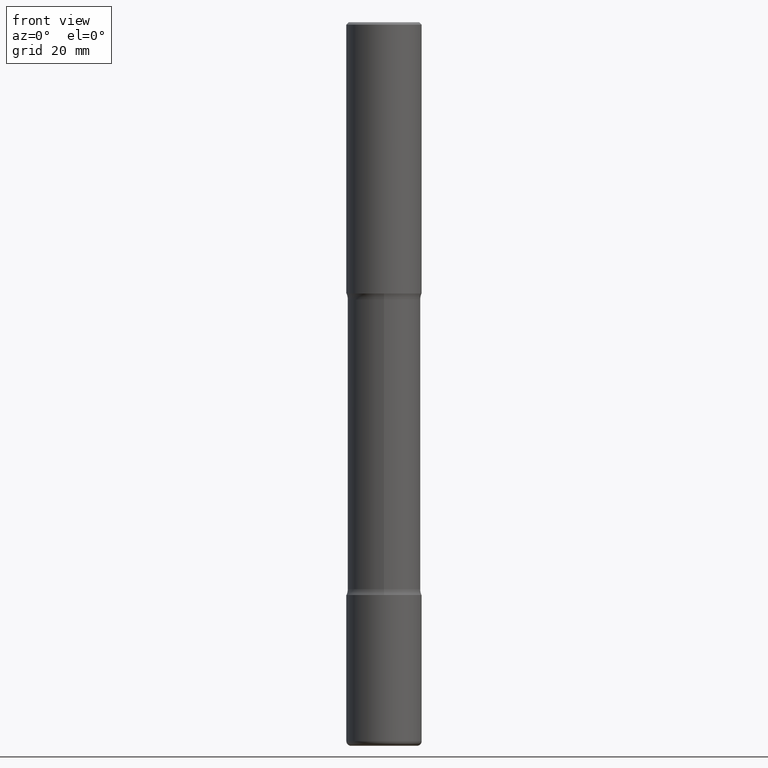
[diagram: clean part render]
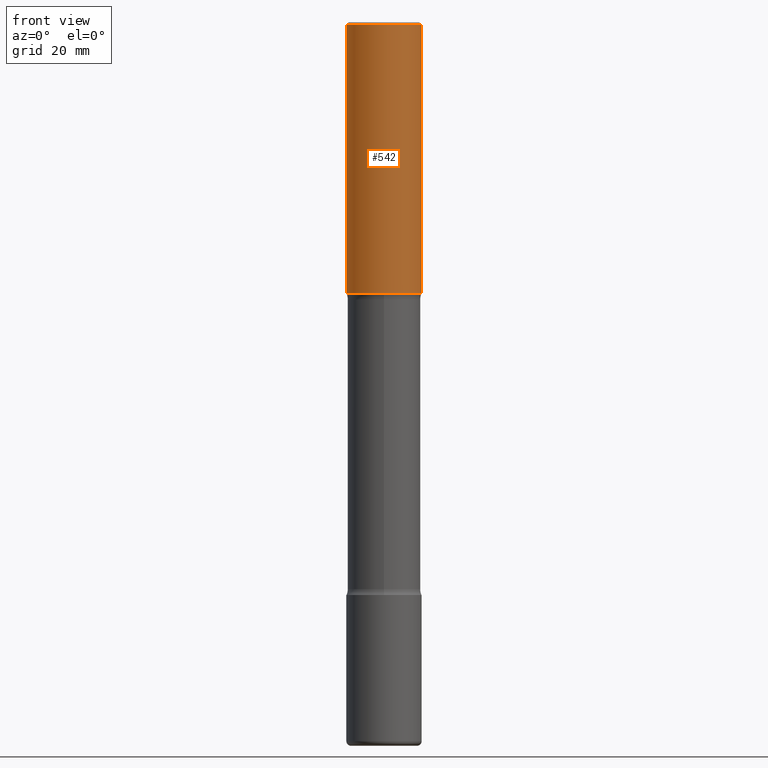
[diagram: same view with one face highlighted and labeled with its STEP entity id]
A machine part, front view. The second image highlights one B-rep face of the part: STEP entity #542.
In plain terms, the highlighted cylindrical surface (partial cylindrical patch) has radius 7.9375 mm, axis along (-0, 0, 1).
Its self-contained STEP definition (entity closure, byte-faithful):
#9 = LINE ( 'NONE', #69, #157 ) ;
#26 = DIRECTION ( 'NONE',  ( -2.445468806185136597E-29, 3.491481338843145583E-15, 1.000000000000000000 ) ) ;
#27 = CARTESIAN_POINT ( 'NONE',  ( 0.3125000000000002776, -1.003800884917403837E-14, -2.249999999999999556 ) ) ;
#30 = CIRCLE ( 'NONE', #399, 0.3124999999999998335 ) ;
#48 = DIRECTION ( 'NONE',  ( -2.445468806185136877E-29, 3.491481338843145188E-15, 1.000000000000000000 ) ) ;
#58 = VERTEX_POINT ( 'NONE', #27 ) ;
#63 = EDGE_CURVE ( 'NONE', #58, #393, #9, .T. ) ;
#68 = FACE_OUTER_BOUND ( 'NONE', #170, .T. ) ;
#69 = CARTESIAN_POINT ( 'NONE',  ( 0.3125000000000000000, -2.182175836776958347E-15, 1.523805242436230075E-29 ) ) ;
#96 = CARTESIAN_POINT ( 'NONE',  ( 5.502304813916556222E-29, -7.855833012397076871E-15, -2.249999999999999556 ) ) ;
#132 = CARTESIAN_POINT ( 'NONE',  ( 0.3124999999999998335, -2.213735251080466123E-15, -0.02000000000000013572 ) ) ;
#143 = ORIENTED_EDGE ( 'NONE', *, *, #267, .F. ) ;
#157 = VECTOR ( 'NONE', #283, 39.37007874015748143 ) ;
#167 = VERTEX_POINT ( 'NONE', #252 ) ;
#170 = EDGE_LOOP ( 'NONE', ( #189, #343, #464, #143 ) ) ;
#189 = ORIENTED_EDGE ( 'NONE', *, *, #362, .F. ) ;
#222 = DIRECTION ( 'NONE',  ( 1.000000000000000000, -6.982962677686266711E-15, 0.000000000000000000 ) ) ;
#236 = AXIS2_PLACEMENT_3D ( 'NONE', #240, #26, #395 ) ;
#240 = CARTESIAN_POINT ( 'NONE',  ( 0.000000000000000000, 0.000000000000000000, 0.000000000000000000 ) ) ;
#252 = CARTESIAN_POINT ( 'NONE',  ( -0.3125000000000002776, -1.742385270336651087E-15, -2.249999999999999556 ) ) ;
#257 = LINE ( 'NONE', #381, #546 ) ;
#267 = EDGE_CURVE ( 'NONE', #434, #393, #30, .T. ) ;
#283 = DIRECTION ( 'NONE',  ( -2.445468806185136877E-29, 3.491481338843145188E-15, 1.000000000000000000 ) ) ;
#288 = CIRCLE ( 'NONE', #509, 0.3125000000000002776 ) ;
#330 = CARTESIAN_POINT ( 'NONE',  ( 4.890937612370306439E-31, -6.982962677686338448E-17, -0.02000000000000013572 ) ) ;
#342 = CARTESIAN_POINT ( 'NONE',  ( -0.3124999999999998335, 2.112346210000093471E-15, -0.02000000000000013572 ) ) ;
#343 = ORIENTED_EDGE ( 'NONE', *, *, #505, .T. ) ;
#345 = DIRECTION ( 'NONE',  ( -2.445468806185136597E-29, 3.491481338843145583E-15, 1.000000000000000000 ) ) ;
#362 = EDGE_CURVE ( 'NONE', #167, #434, #257, .T. ) ;
#381 = CARTESIAN_POINT ( 'NONE',  ( -0.3125000000000000000, 2.220446049250313081E-15, -1.537167215704658232E-29 ) ) ;
#393 = VERTEX_POINT ( 'NONE', #132 ) ;
#395 = DIRECTION ( 'NONE',  ( 1.000000000000000000, -6.982962677686266711E-15, 4.876176775795936353E-29 ) ) ;
#399 = AXIS2_PLACEMENT_3D ( 'NONE', #330, #459, #222 ) ;
#405 = CYLINDRICAL_SURFACE ( 'NONE', #236, 0.3125000000000000000 ) ;
#434 = VERTEX_POINT ( 'NONE', #342 ) ;
#459 = DIRECTION ( 'NONE',  ( -2.445468806185136597E-29, 3.491481338843145583E-15, 1.000000000000000000 ) ) ;
#464 = ORIENTED_EDGE ( 'NONE', *, *, #63, .T. ) ;
#505 = EDGE_CURVE ( 'NONE', #167, #58, #288, .T. ) ;
#509 = AXIS2_PLACEMENT_3D ( 'NONE', #96, #345, #524 ) ;
#524 = DIRECTION ( 'NONE',  ( 1.000000000000000000, -6.982962677686269077E-15, 0.000000000000000000 ) ) ;
#542 = ADVANCED_FACE ( 'NONE', ( #68 ), #405, .T. ) ;
#546 = VECTOR ( 'NONE', #48, 39.37007874015748143 ) ;